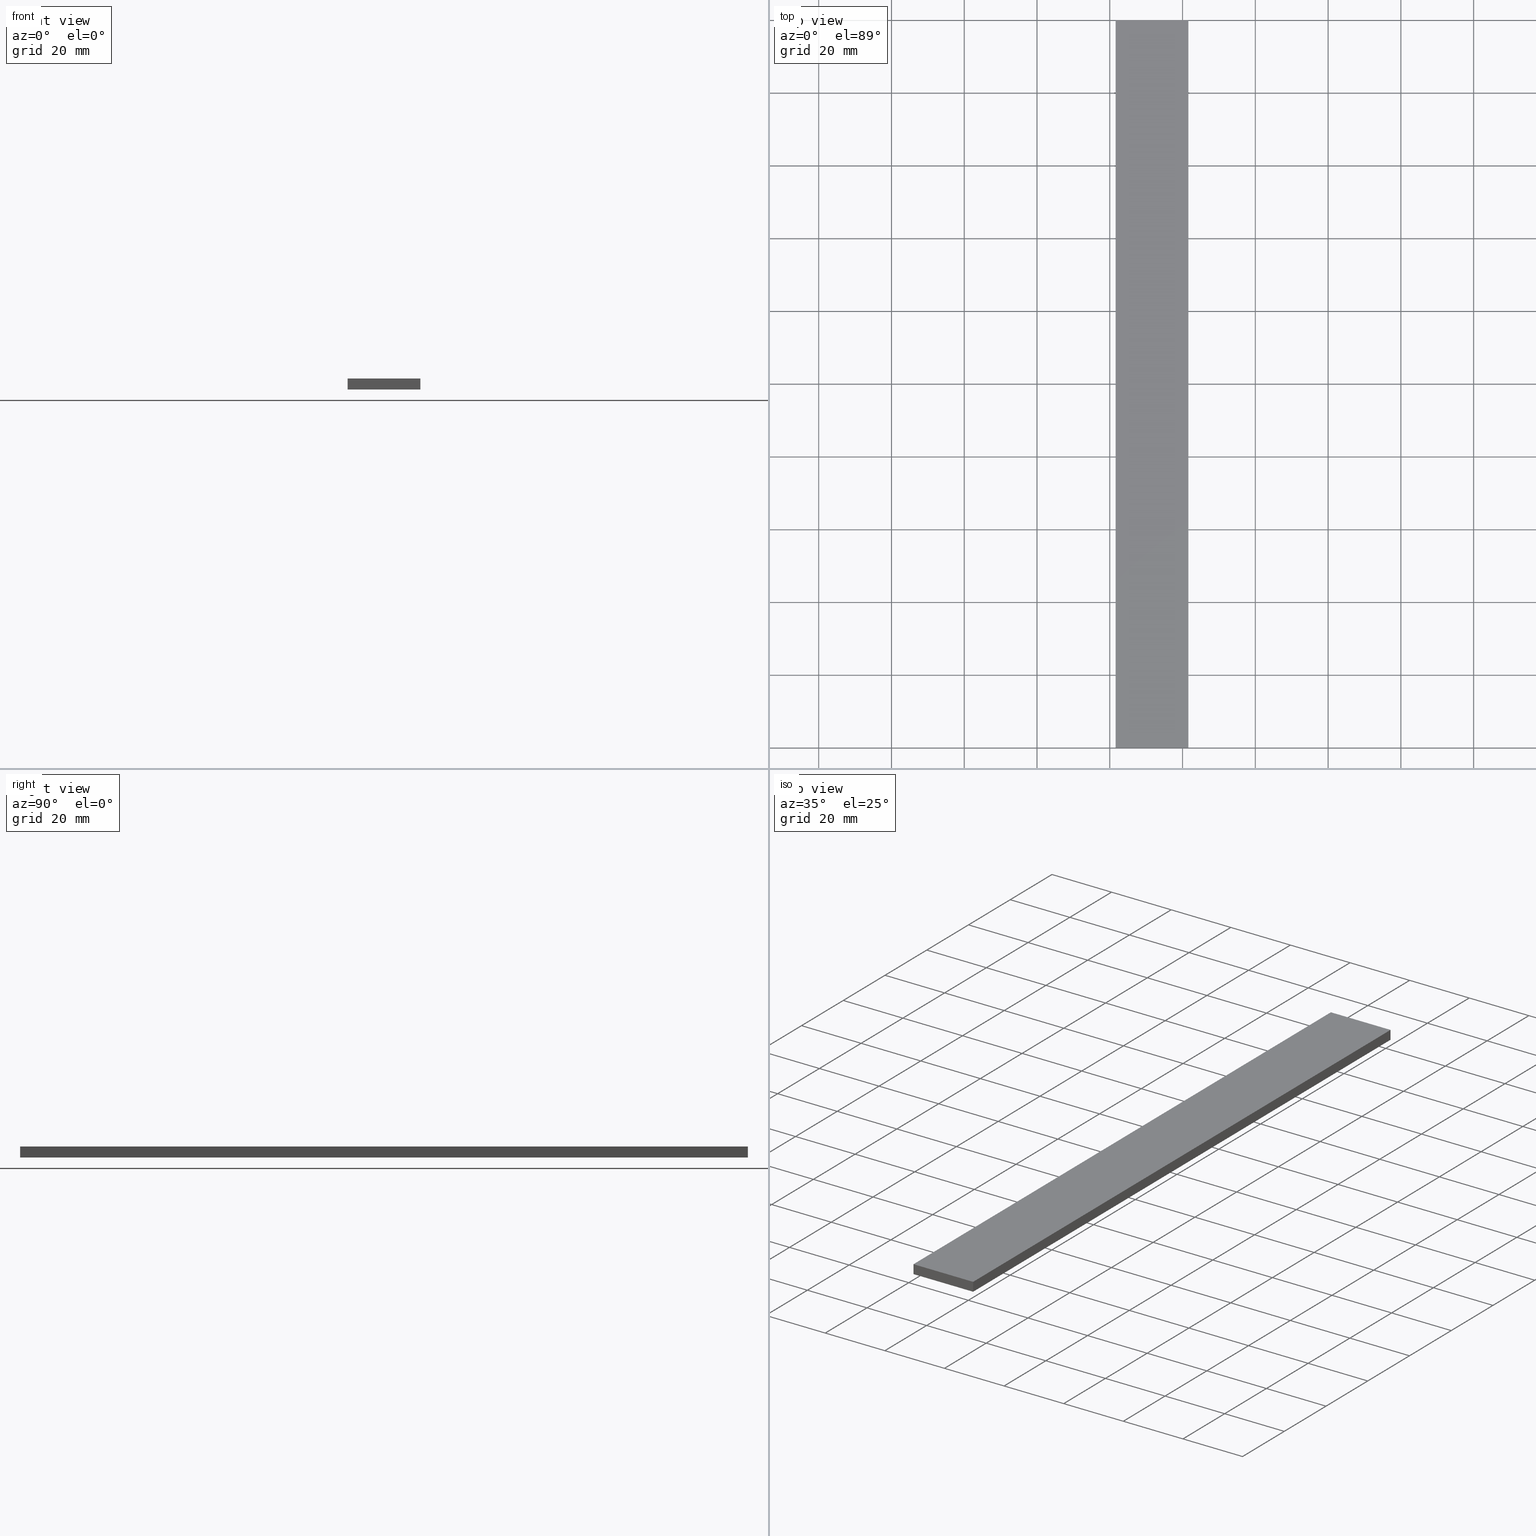
[diagram: canonical four-view strip — front | top / right | iso, engineering-drawing reading convention]
A machine part, canonical four-view strip (front | top / right | iso — engineering-drawing reading convention). The complete STEP part file that produces these views, byte-faithful:
ISO-10303-21;
HEADER;

FILE_DESCRIPTION( (''), '2;1');
FILE_NAME ('PC017.7836.TM_244_3_20_15214.stp','2022-12-01T14:33:15',(''),(''),'spGate 18.9.1 (****-****-****-****)','','');

FILE_SCHEMA (('AUTOMOTIVE_DESIGN'));
ENDSEC;

DATA;
#10=(GEOMETRIC_REPRESENTATION_CONTEXT(3) GLOBAL_UNCERTAINTY_ASSIGNED_CONTEXT((#11)) GLOBAL_UNIT_ASSIGNED_CONTEXT((#12,#13,#14)) REPRESENTATION_CONTEXT('ID1','3D'));
#11=UNCERTAINTY_MEASURE_WITH_UNIT(LENGTH_MEASURE(0.01),#15,'DISTANCE_ACCURACY_VALUE','Maximum model space distance between geometric entities at asserted connectivities');
#12=(NAMED_UNIT(*) SI_UNIT($,.STERADIAN.) SOLID_ANGLE_UNIT());
#13=(CONVERSION_BASED_UNIT('DEGREE',#16) NAMED_UNIT(#17) PLANE_ANGLE_UNIT());
#14=(LENGTH_UNIT() NAMED_UNIT(*) SI_UNIT(.MILLI.,.METRE.));
#15=(LENGTH_UNIT() NAMED_UNIT(*) SI_UNIT(.MILLI.,.METRE.));
#16=PLANE_ANGLE_MEASURE_WITH_UNIT(PLANE_ANGLE_MEASURE(0.01745329252),#18);
#17=DIMENSIONAL_EXPONENTS(0.0,0.0,0.0,0.0,0.0,0.0,0.0);
#18=(NAMED_UNIT(*) PLANE_ANGLE_UNIT() SI_UNIT($,.RADIAN.));
#19=MANIFOLD_SOLID_BREP('TM_244_3_20',#31);
#20=ADVANCED_BREP_SHAPE_REPRESENTATION('',(#19),#10);
#21=APPLICATION_CONTEXT('');
#22=APPLICATION_PROTOCOL_DEFINITION('International Standard','automotive_design',1999,#21);
#23=PRODUCT_DEFINITION_CONTEXT('',#21,'design');
#24=PRODUCT_CONTEXT('',#21,'mechanical');
#25=PRODUCT('','','',(#24));
#26=PRODUCT_DEFINITION_FORMATION_WITH_SPECIFIED_SOURCE('','',#25,.NOT_KNOWN.);
#27=PRODUCT_RELATED_PRODUCT_CATEGORY('tool','tool',(#25));
#28=PRODUCT_DEFINITION('','',#26,#23);
#29=PRODUCT_DEFINITION_SHAPE('','',#28);
#30=SHAPE_DEFINITION_REPRESENTATION(#29,#20);
#31=CLOSED_SHELL('',(#40,#41,#42,#43,#44,#45));
#32=COLOUR_RGB('',0.00000000000E+00,0.00000000000E+00,0.00000000000E+00);
#33=FILL_AREA_STYLE_COLOUR('',#32);
#34=FILL_AREA_STYLE('',(#33));
#35=SURFACE_STYLE_FILL_AREA(#34);
#36=SURFACE_SIDE_STYLE('',(#35));
#37=SURFACE_STYLE_USAGE(.BOTH.,#36);
#38=PRESENTATION_STYLE_ASSIGNMENT((#37));
#39=STYLED_ITEM('',(#38),#19);
#40=ADVANCED_FACE('',(#47),#46,.T.);
#41=ADVANCED_FACE('',(#57),#56,.F.);
#42=ADVANCED_FACE('',(#67),#66,.T.);
#43=ADVANCED_FACE('',(#77),#76,.T.);
#44=ADVANCED_FACE('',(#87),#86,.T.);
#45=ADVANCED_FACE('',(#97),#96,.T.);
#46=PLANE('',#109);
#47=FACE_OUTER_BOUND('',#110,.T.);
#48=COLOUR_RGB('',6.58823549747E-01,6.58823549747E-01,6.58823549747E-01);
#49=FILL_AREA_STYLE_COLOUR('',#48);
#50=FILL_AREA_STYLE('',(#49));
#51=SURFACE_STYLE_FILL_AREA(#50);
#52=SURFACE_SIDE_STYLE('',(#51));
#53=SURFACE_STYLE_USAGE(.BOTH.,#52);
#54=PRESENTATION_STYLE_ASSIGNMENT((#53));
#55=STYLED_ITEM('',(#54),#40);
#56=PLANE('',#114);
#57=FACE_OUTER_BOUND('',#115,.T.);
#58=COLOUR_RGB('',6.58823549747E-01,6.58823549747E-01,6.58823549747E-01);
#59=FILL_AREA_STYLE_COLOUR('',#58);
#60=FILL_AREA_STYLE('',(#59));
#61=SURFACE_STYLE_FILL_AREA(#60);
#62=SURFACE_SIDE_STYLE('',(#61));
#63=SURFACE_STYLE_USAGE(.BOTH.,#62);
#64=PRESENTATION_STYLE_ASSIGNMENT((#63));
#65=STYLED_ITEM('',(#64),#41);
#66=PLANE('',#119);
#67=FACE_OUTER_BOUND('',#120,.T.);
#68=COLOUR_RGB('',6.58823549747E-01,6.58823549747E-01,6.58823549747E-01);
#69=FILL_AREA_STYLE_COLOUR('',#68);
#70=FILL_AREA_STYLE('',(#69));
#71=SURFACE_STYLE_FILL_AREA(#70);
#72=SURFACE_SIDE_STYLE('',(#71));
#73=SURFACE_STYLE_USAGE(.BOTH.,#72);
#74=PRESENTATION_STYLE_ASSIGNMENT((#73));
#75=STYLED_ITEM('',(#74),#42);
#76=PLANE('',#124);
#77=FACE_OUTER_BOUND('',#125,.T.);
#78=COLOUR_RGB('',6.58823549747E-01,6.58823549747E-01,6.58823549747E-01);
#79=FILL_AREA_STYLE_COLOUR('',#78);
#80=FILL_AREA_STYLE('',(#79));
#81=SURFACE_STYLE_FILL_AREA(#80);
#82=SURFACE_SIDE_STYLE('',(#81));
#83=SURFACE_STYLE_USAGE(.BOTH.,#82);
#84=PRESENTATION_STYLE_ASSIGNMENT((#83));
#85=STYLED_ITEM('',(#84),#43);
#86=PLANE('',#129);
#87=FACE_OUTER_BOUND('',#130,.T.);
#88=COLOUR_RGB('',6.58823549747E-01,6.58823549747E-01,6.58823549747E-01);
#89=FILL_AREA_STYLE_COLOUR('',#88);
#90=FILL_AREA_STYLE('',(#89));
#91=SURFACE_STYLE_FILL_AREA(#90);
#92=SURFACE_SIDE_STYLE('',(#91));
#93=SURFACE_STYLE_USAGE(.BOTH.,#92);
#94=PRESENTATION_STYLE_ASSIGNMENT((#93));
#95=STYLED_ITEM('',(#94),#44);
#96=PLANE('',#134);
#97=FACE_OUTER_BOUND('',#135,.T.);
#98=COLOUR_RGB('',6.58823549747E-01,6.58823549747E-01,6.58823549747E-01);
#99=FILL_AREA_STYLE_COLOUR('',#98);
#100=FILL_AREA_STYLE('',(#99));
#101=SURFACE_STYLE_FILL_AREA(#100);
#102=SURFACE_SIDE_STYLE('',(#101));
#103=SURFACE_STYLE_USAGE(.BOTH.,#102);
#104=PRESENTATION_STYLE_ASSIGNMENT((#103));
#105=STYLED_ITEM('',(#104),#45);
#106=CARTESIAN_POINT('',(-6.03984348923E+01,2.00000000000E+02,-1.88317700058E+01));
#107=DIRECTION('',(-0.00000000000E+00,1.00000000000E+00,0.00000000000E+00));
#108=DIRECTION('',(0.00000000000E+00,0.00000000000E+00,1.00000000000E+00));
#109=AXIS2_PLACEMENT_3D('',#106,#107,#108);
#110=EDGE_LOOP('',(#136,#137,#138,#139));
#111=CARTESIAN_POINT('',(-6.03984348923E+01,0.00000000000E+00,-1.88317700058E+01));
#112=DIRECTION('',(-0.00000000000E+00,1.00000000000E+00,0.00000000000E+00));
#113=DIRECTION('',(0.00000000000E+00,0.00000000000E+00,1.00000000000E+00));
#114=AXIS2_PLACEMENT_3D('',#111,#112,#113);
#115=EDGE_LOOP('',(#140,#141,#142,#143));
#116=CARTESIAN_POINT('',(-5.83984348923E+01,-1.00000000000E+01,-1.88317700058E+01));
#117=DIRECTION('',(-1.00000000000E+00,0.00000000000E+00,0.00000000000E+00));
#118=DIRECTION('',(0.00000000000E+00,0.00000000000E+00,1.00000000000E+00));
#119=AXIS2_PLACEMENT_3D('',#116,#117,#118);
#120=EDGE_LOOP('',(#144,#145,#146,#147));
#121=CARTESIAN_POINT('',(-3.63984348923E+01,-1.00000000000E+01,-1.85317700058E+01));
#122=DIRECTION('',(0.00000000000E+00,0.00000000000E+00,-1.00000000000E+00));
#123=DIRECTION('',(-1.00000000000E+00,0.00000000000E+00,0.00000000000E+00));
#124=AXIS2_PLACEMENT_3D('',#121,#122,#123);
#125=EDGE_LOOP('',(#148,#149,#150,#151));
#126=CARTESIAN_POINT('',(-3.83984348923E+01,-1.00000000000E+01,-1.52317700058E+01));
#127=DIRECTION('',(1.00000000000E+00,0.00000000000E+00,0.00000000000E+00));
#128=DIRECTION('',(0.00000000000E+00,0.00000000000E+00,-1.00000000000E+00));
#129=AXIS2_PLACEMENT_3D('',#126,#127,#128);
#130=EDGE_LOOP('',(#152,#153,#154,#155));
#131=CARTESIAN_POINT('',(-6.03984348923E+01,-1.00000000000E+01,-1.55317700058E+01));
#132=DIRECTION('',(0.00000000000E+00,-0.00000000000E+00,1.00000000000E+00));
#133=DIRECTION('',(1.00000000000E+00,0.00000000000E+00,-0.00000000000E+00));
#134=AXIS2_PLACEMENT_3D('',#131,#132,#133);
#135=EDGE_LOOP('',(#156,#157,#158,#159));
#136=ORIENTED_EDGE('',*,*,#160,.F.);
#137=ORIENTED_EDGE('',*,*,#161,.F.);
#138=ORIENTED_EDGE('',*,*,#162,.F.);
#139=ORIENTED_EDGE('',*,*,#163,.F.);
#140=ORIENTED_EDGE('',*,*,#164,.T.);
#141=ORIENTED_EDGE('',*,*,#165,.T.);
#142=ORIENTED_EDGE('',*,*,#166,.T.);
#143=ORIENTED_EDGE('',*,*,#167,.T.);
#144=ORIENTED_EDGE('',*,*,#167,.F.);
#145=ORIENTED_EDGE('',*,*,#168,.F.);
#146=ORIENTED_EDGE('',*,*,#161,.T.);
#147=ORIENTED_EDGE('',*,*,#169,.T.);
#148=ORIENTED_EDGE('',*,*,#164,.F.);
#149=ORIENTED_EDGE('',*,*,#169,.F.);
#150=ORIENTED_EDGE('',*,*,#160,.T.);
#151=ORIENTED_EDGE('',*,*,#170,.T.);
#152=ORIENTED_EDGE('',*,*,#165,.F.);
#153=ORIENTED_EDGE('',*,*,#170,.F.);
#154=ORIENTED_EDGE('',*,*,#163,.T.);
#155=ORIENTED_EDGE('',*,*,#171,.T.);
#156=ORIENTED_EDGE('',*,*,#166,.F.);
#157=ORIENTED_EDGE('',*,*,#171,.F.);
#158=ORIENTED_EDGE('',*,*,#162,.T.);
#159=ORIENTED_EDGE('',*,*,#168,.T.);
#160=EDGE_CURVE('',#172,#173,#174,.T.);
#161=EDGE_CURVE('',#180,#172,#181,.T.);
#162=EDGE_CURVE('',#187,#180,#188,.T.);
#163=EDGE_CURVE('',#173,#187,#194,.T.);
#164=EDGE_CURVE('',#200,#201,#202,.T.);
#165=EDGE_CURVE('',#201,#208,#209,.T.);
#166=EDGE_CURVE('',#208,#215,#216,.T.);
#167=EDGE_CURVE('',#215,#200,#222,.T.);
#168=EDGE_CURVE('',#180,#215,#228,.T.);
#169=EDGE_CURVE('',#172,#200,#234,.T.);
#170=EDGE_CURVE('',#173,#201,#240,.T.);
#171=EDGE_CURVE('',#187,#208,#246,.T.);
#172=VERTEX_POINT('',#252);
#173=VERTEX_POINT('',#253);
#174=LINE('',#254,#255);
#175=COLOUR_RGB('',1.00000000000E+00,1.00000000000E+00,1.00000000000E+00);
#176=DRAUGHTING_PRE_DEFINED_CURVE_FONT('continuous');
#177=CURVE_STYLE( '',#176, POSITIVE_LENGTH_MEASURE(1.00000000000E-06),#175);
#178=PRESENTATION_STYLE_ASSIGNMENT((#177));
#179=STYLED_ITEM('',(#178),#160);
#180=VERTEX_POINT('',#257);
#181=LINE('',#258,#259);
#182=COLOUR_RGB('',1.00000000000E+00,1.00000000000E+00,1.00000000000E+00);
#183=DRAUGHTING_PRE_DEFINED_CURVE_FONT('continuous');
#184=CURVE_STYLE( '',#183, POSITIVE_LENGTH_MEASURE(1.00000000000E-06),#182);
#185=PRESENTATION_STYLE_ASSIGNMENT((#184));
#186=STYLED_ITEM('',(#185),#161);
#187=VERTEX_POINT('',#261);
#188=LINE('',#262,#263);
#189=COLOUR_RGB('',1.00000000000E+00,1.00000000000E+00,1.00000000000E+00);
#190=DRAUGHTING_PRE_DEFINED_CURVE_FONT('continuous');
#191=CURVE_STYLE( '',#190, POSITIVE_LENGTH_MEASURE(1.00000000000E-06),#189);
#192=PRESENTATION_STYLE_ASSIGNMENT((#191));
#193=STYLED_ITEM('',(#192),#162);
#194=LINE('',#265,#266);
#195=COLOUR_RGB('',1.00000000000E+00,1.00000000000E+00,1.00000000000E+00);
#196=DRAUGHTING_PRE_DEFINED_CURVE_FONT('continuous');
#197=CURVE_STYLE( '',#196, POSITIVE_LENGTH_MEASURE(1.00000000000E-06),#195);
#198=PRESENTATION_STYLE_ASSIGNMENT((#197));
#199=STYLED_ITEM('',(#198),#163);
#200=VERTEX_POINT('',#268);
#201=VERTEX_POINT('',#269);
#202=LINE('',#270,#271);
#203=COLOUR_RGB('',1.00000000000E+00,1.00000000000E+00,1.00000000000E+00);
#204=DRAUGHTING_PRE_DEFINED_CURVE_FONT('continuous');
#205=CURVE_STYLE( '',#204, POSITIVE_LENGTH_MEASURE(1.00000000000E-06),#203);
#206=PRESENTATION_STYLE_ASSIGNMENT((#205));
#207=STYLED_ITEM('',(#206),#164);
#208=VERTEX_POINT('',#273);
#209=LINE('',#274,#275);
#210=COLOUR_RGB('',1.00000000000E+00,1.00000000000E+00,1.00000000000E+00);
#211=DRAUGHTING_PRE_DEFINED_CURVE_FONT('continuous');
#212=CURVE_STYLE( '',#211, POSITIVE_LENGTH_MEASURE(1.00000000000E-06),#210);
#213=PRESENTATION_STYLE_ASSIGNMENT((#212));
#214=STYLED_ITEM('',(#213),#165);
#215=VERTEX_POINT('',#277);
#216=LINE('',#278,#279);
#217=COLOUR_RGB('',1.00000000000E+00,1.00000000000E+00,1.00000000000E+00);
#218=DRAUGHTING_PRE_DEFINED_CURVE_FONT('continuous');
#219=CURVE_STYLE( '',#218, POSITIVE_LENGTH_MEASURE(1.00000000000E-06),#217);
#220=PRESENTATION_STYLE_ASSIGNMENT((#219));
#221=STYLED_ITEM('',(#220),#166);
#222=LINE('',#281,#282);
#223=COLOUR_RGB('',1.00000000000E+00,1.00000000000E+00,1.00000000000E+00);
#224=DRAUGHTING_PRE_DEFINED_CURVE_FONT('continuous');
#225=CURVE_STYLE( '',#224, POSITIVE_LENGTH_MEASURE(1.00000000000E-06),#223);
#226=PRESENTATION_STYLE_ASSIGNMENT((#225));
#227=STYLED_ITEM('',(#226),#167);
#228=LINE('',#284,#285);
#229=COLOUR_RGB('',1.00000000000E+00,1.00000000000E+00,1.00000000000E+00);
#230=DRAUGHTING_PRE_DEFINED_CURVE_FONT('continuous');
#231=CURVE_STYLE( '',#230, POSITIVE_LENGTH_MEASURE(1.00000000000E-06),#229);
#232=PRESENTATION_STYLE_ASSIGNMENT((#231));
#233=STYLED_ITEM('',(#232),#168);
#234=LINE('',#287,#288);
#235=COLOUR_RGB('',1.00000000000E+00,1.00000000000E+00,1.00000000000E+00);
#236=DRAUGHTING_PRE_DEFINED_CURVE_FONT('continuous');
#237=CURVE_STYLE( '',#236, POSITIVE_LENGTH_MEASURE(1.00000000000E-06),#235);
#238=PRESENTATION_STYLE_ASSIGNMENT((#237));
#239=STYLED_ITEM('',(#238),#169);
#240=LINE('',#290,#291);
#241=COLOUR_RGB('',1.00000000000E+00,1.00000000000E+00,1.00000000000E+00);
#242=DRAUGHTING_PRE_DEFINED_CURVE_FONT('continuous');
#243=CURVE_STYLE( '',#242, POSITIVE_LENGTH_MEASURE(1.00000000000E-06),#241);
#244=PRESENTATION_STYLE_ASSIGNMENT((#243));
#245=STYLED_ITEM('',(#244),#170);
#246=LINE('',#293,#294);
#247=COLOUR_RGB('',1.00000000000E+00,1.00000000000E+00,1.00000000000E+00);
#248=DRAUGHTING_PRE_DEFINED_CURVE_FONT('continuous');
#249=CURVE_STYLE( '',#248, POSITIVE_LENGTH_MEASURE(1.00000000000E-06),#247);
#250=PRESENTATION_STYLE_ASSIGNMENT((#249));
#251=STYLED_ITEM('',(#250),#171);
#252=CARTESIAN_POINT('',(-5.83984348923E+01,2.00000000000E+02,-1.85317700058E+01));
#253=CARTESIAN_POINT('',(-3.83984348923E+01,2.00000000000E+02,-1.85317700058E+01));
#254=CARTESIAN_POINT('',(-5.83984348923E+01,2.00000000000E+02,-1.85317700058E+01));
#255=VECTOR('',#256,2.00000000000E+01);
#256=DIRECTION('',(1.00000000000E+00,0.00000000000E+00,0.00000000000E+00));
#257=CARTESIAN_POINT('',(-5.83984348923E+01,2.00000000000E+02,-1.55317700058E+01));
#258=CARTESIAN_POINT('',(-5.83984348923E+01,2.00000000000E+02,-1.55317700058E+01));
#259=VECTOR('',#260,3.00000000000E+00);
#260=DIRECTION('',(0.00000000000E+00,0.00000000000E+00,-1.00000000000E+00));
#261=CARTESIAN_POINT('',(-3.83984348923E+01,2.00000000000E+02,-1.55317700058E+01));
#262=CARTESIAN_POINT('',(-3.83984348923E+01,2.00000000000E+02,-1.55317700058E+01));
#263=VECTOR('',#264,2.00000000000E+01);
#264=DIRECTION('',(-1.00000000000E+00,0.00000000000E+00,0.00000000000E+00));
#265=CARTESIAN_POINT('',(-3.83984348923E+01,2.00000000000E+02,-1.85317700058E+01));
#266=VECTOR('',#267,3.00000000000E+00);
#267=DIRECTION('',(0.00000000000E+00,0.00000000000E+00,1.00000000000E+00));
#268=CARTESIAN_POINT('',(-5.83984348923E+01,0.00000000000E+00,-1.85317700058E+01));
#269=CARTESIAN_POINT('',(-3.83984348923E+01,0.00000000000E+00,-1.85317700058E+01));
#270=CARTESIAN_POINT('',(-5.83984348923E+01,0.00000000000E+00,-1.85317700058E+01));
#271=VECTOR('',#272,2.00000000000E+01);
#272=DIRECTION('',(1.00000000000E+00,0.00000000000E+00,0.00000000000E+00));
#273=CARTESIAN_POINT('',(-3.83984348923E+01,0.00000000000E+00,-1.55317700058E+01));
#274=CARTESIAN_POINT('',(-3.83984348923E+01,0.00000000000E+00,-1.85317700058E+01));
#275=VECTOR('',#276,3.00000000000E+00);
#276=DIRECTION('',(0.00000000000E+00,0.00000000000E+00,1.00000000000E+00));
#277=CARTESIAN_POINT('',(-5.83984348923E+01,0.00000000000E+00,-1.55317700058E+01));
#278=CARTESIAN_POINT('',(-3.83984348923E+01,0.00000000000E+00,-1.55317700058E+01));
#279=VECTOR('',#280,2.00000000000E+01);
#280=DIRECTION('',(-1.00000000000E+00,0.00000000000E+00,0.00000000000E+00));
#281=CARTESIAN_POINT('',(-5.83984348923E+01,0.00000000000E+00,-1.55317700058E+01));
#282=VECTOR('',#283,3.00000000000E+00);
#283=DIRECTION('',(0.00000000000E+00,0.00000000000E+00,-1.00000000000E+00));
#284=CARTESIAN_POINT('',(-5.83984348923E+01,2.00000000000E+02,-1.55317700058E+01));
#285=VECTOR('',#286,2.00000000000E+02);
#286=DIRECTION('',(0.00000000000E+00,-1.00000000000E+00,0.00000000000E+00));
#287=CARTESIAN_POINT('',(-5.83984348923E+01,2.00000000000E+02,-1.85317700058E+01));
#288=VECTOR('',#289,2.00000000000E+02);
#289=DIRECTION('',(0.00000000000E+00,-1.00000000000E+00,0.00000000000E+00));
#290=CARTESIAN_POINT('',(-3.83984348923E+01,2.00000000000E+02,-1.85317700058E+01));
#291=VECTOR('',#292,2.00000000000E+02);
#292=DIRECTION('',(0.00000000000E+00,-1.00000000000E+00,0.00000000000E+00));
#293=CARTESIAN_POINT('',(-3.83984348923E+01,2.00000000000E+02,-1.55317700058E+01));
#294=VECTOR('',#295,2.00000000000E+02);
#295=DIRECTION('',(0.00000000000E+00,-1.00000000000E+00,0.00000000000E+00));
#296=MECHANICAL_DESIGN_GEOMETRIC_PRESENTATION_REPRESENTATION( '', (#39,#55,#65,#75,#85,#95,#105,#179,#186,#193,#199,#207,#214,#221,#227,#233,#239,#245,#251),#10);
ENDSEC;
END-ISO-10303-21;
